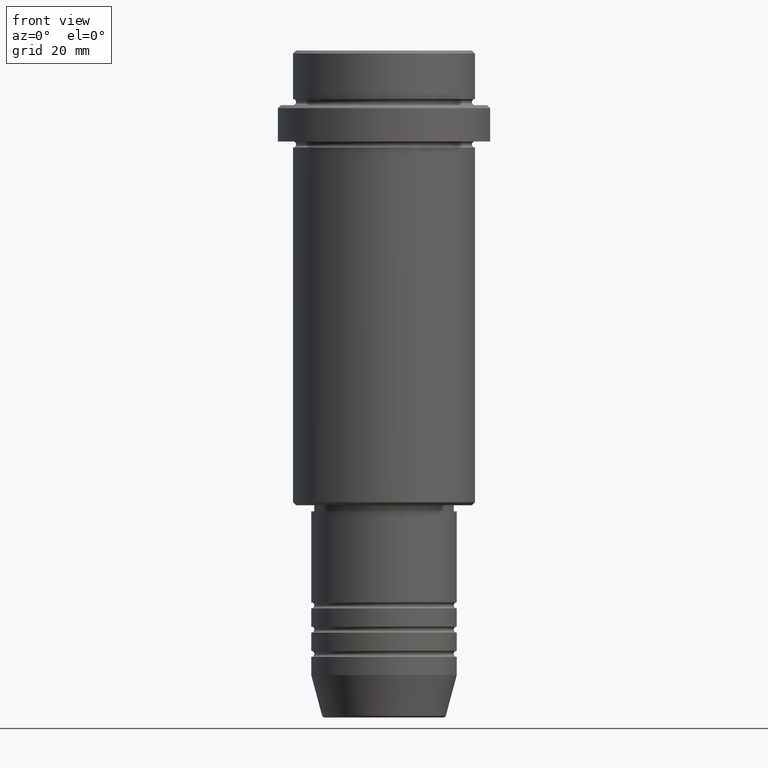
[diagram: clean part render]
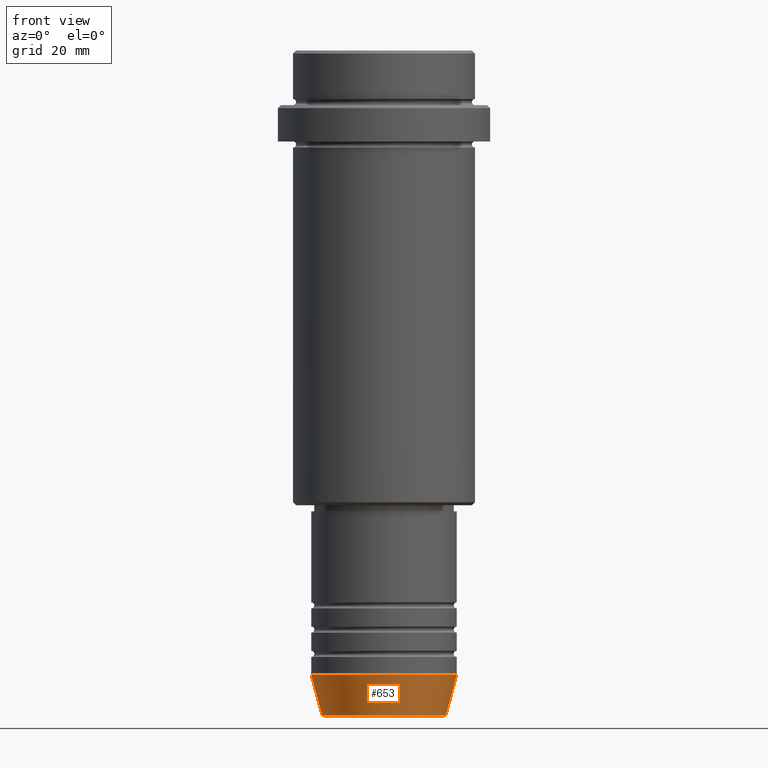
[diagram: same view with one face highlighted and labeled with its STEP entity id]
A machine part, front view. The second image highlights one B-rep face of the part: STEP entity #653.
In plain terms, the highlighted conical surface has half-angle 15 deg.
Its self-contained STEP definition (entity closure, byte-faithful):
#28 = DIRECTION ( 'NONE',  ( -0.000000000000000000, -0.000000000000000000, 1.000000000000000000 ) ) ;
#31 = CONICAL_SURFACE ( 'NONE', #468, 12.00000000000000000, 0.2617993877991500740 ) ;
#74 = FACE_OUTER_BOUND ( 'NONE', #714, .T. ) ;
#97 = EDGE_CURVE ( 'NONE', #120, #1240, #182, .T. ) ;
#120 = VERTEX_POINT ( 'NONE', #682 ) ;
#131 = CARTESIAN_POINT ( 'NONE',  ( 0.000000000000000000, 0.000000000000000000, -109.6294095225512706 ) ) ;
#182 = CIRCLE ( 'NONE', #1296, 10.22365507213718949 ) ;
#210 = ORIENTED_EDGE ( 'NONE', *, *, #514, .F. ) ;
#212 = DIRECTION ( 'NONE',  ( -0.000000000000000000, -0.000000000000000000, 1.000000000000000000 ) ) ;
#301 = DIRECTION ( 'NONE',  ( 0.2588190451025213501, 0.000000000000000000, 0.9659258262890680902 ) ) ;
#338 = EDGE_CURVE ( 'NONE', #1240, #1085, #1271, .T. ) ;
#341 = DIRECTION ( 'NONE',  ( 1.000000000000000000, 0.000000000000000000, 0.000000000000000000 ) ) ;
#348 = CARTESIAN_POINT ( 'NONE',  ( 10.22365507213718949, 0.000000000000000000, -109.6294095225512706 ) ) ;
#383 = CARTESIAN_POINT ( 'NONE',  ( -12.00000000000000000, 1.469576158976823947E-15, -103.0000000000000142 ) ) ;
#416 = ORIENTED_EDGE ( 'NONE', *, *, #1180, .F. ) ;
#468 = AXIS2_PLACEMENT_3D ( 'NONE', #1161, #212, #532 ) ;
#514 = EDGE_CURVE ( 'NONE', #120, #760, #1364, .T. ) ;
#524 = CIRCLE ( 'NONE', #1244, 12.00000000000000000 ) ;
#532 = DIRECTION ( 'NONE',  ( 1.000000000000000000, 0.000000000000000000, 0.000000000000000000 ) ) ;
#539 = ORIENTED_EDGE ( 'NONE', *, *, #338, .T. ) ;
#653 = ADVANCED_FACE ( 'NONE', ( #74 ), #31, .T. ) ;
#657 = CARTESIAN_POINT ( 'NONE',  ( 0.000000000000000000, 0.000000000000000000, -103.0000000000000142 ) ) ;
#682 = CARTESIAN_POINT ( 'NONE',  ( -10.22365507213718949, 1.360806402472382547E-15, -109.6294095225512706 ) ) ;
#714 = EDGE_LOOP ( 'NONE', ( #210, #764, #539, #416 ) ) ;
#727 = CARTESIAN_POINT ( 'NONE',  ( 12.00000000000000000, 0.000000000000000000, -103.0000000000000142 ) ) ;
#760 = VERTEX_POINT ( 'NONE', #1184 ) ;
#764 = ORIENTED_EDGE ( 'NONE', *, *, #97, .T. ) ;
#920 = DIRECTION ( 'NONE',  ( -0.2588190451025213501, 3.169619151431772337E-17, 0.9659258262890680902 ) ) ;
#970 = DIRECTION ( 'NONE',  ( 1.000000000000000000, 0.000000000000000000, 0.000000000000000000 ) ) ;
#1047 = VECTOR ( 'NONE', #301, 1000.000000000000000 ) ;
#1057 = CARTESIAN_POINT ( 'NONE',  ( 12.00000000000000000, 0.000000000000000000, -103.0000000000000142 ) ) ;
#1085 = VERTEX_POINT ( 'NONE', #1057 ) ;
#1095 = DIRECTION ( 'NONE',  ( -0.000000000000000000, -0.000000000000000000, 1.000000000000000000 ) ) ;
#1161 = CARTESIAN_POINT ( 'NONE',  ( 0.000000000000000000, 0.000000000000000000, -103.0000000000000142 ) ) ;
#1180 = EDGE_CURVE ( 'NONE', #760, #1085, #524, .T. ) ;
#1184 = CARTESIAN_POINT ( 'NONE',  ( -12.00000000000000000, 1.469576158976823947E-15, -103.0000000000000142 ) ) ;
#1215 = VECTOR ( 'NONE', #920, 1000.000000000000000 ) ;
#1240 = VERTEX_POINT ( 'NONE', #348 ) ;
#1244 = AXIS2_PLACEMENT_3D ( 'NONE', #657, #1095, #970 ) ;
#1271 = LINE ( 'NONE', #727, #1047 ) ;
#1296 = AXIS2_PLACEMENT_3D ( 'NONE', #131, #28, #341 ) ;
#1364 = LINE ( 'NONE', #383, #1215 ) ;